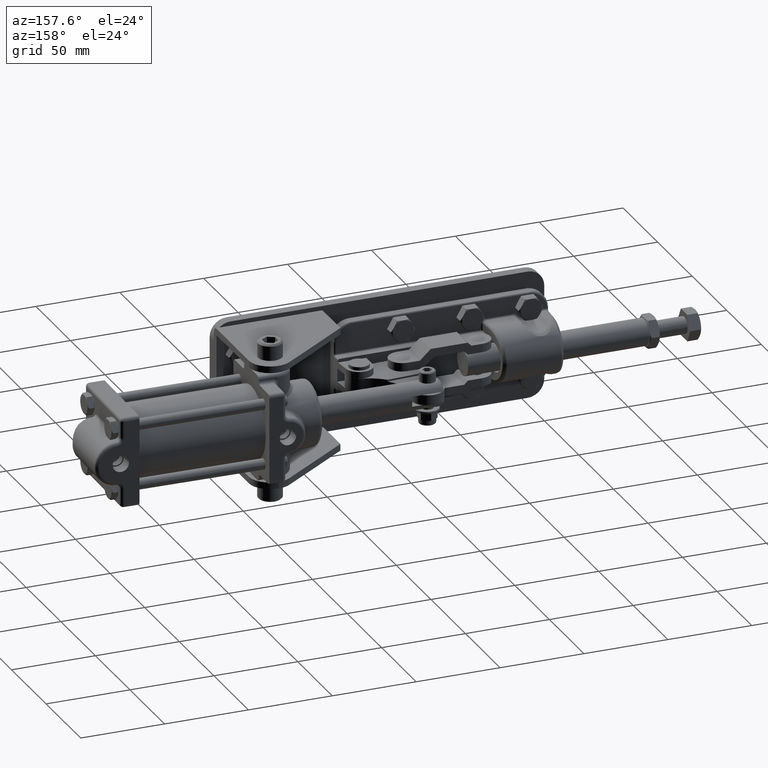
[diagram: clean part render]
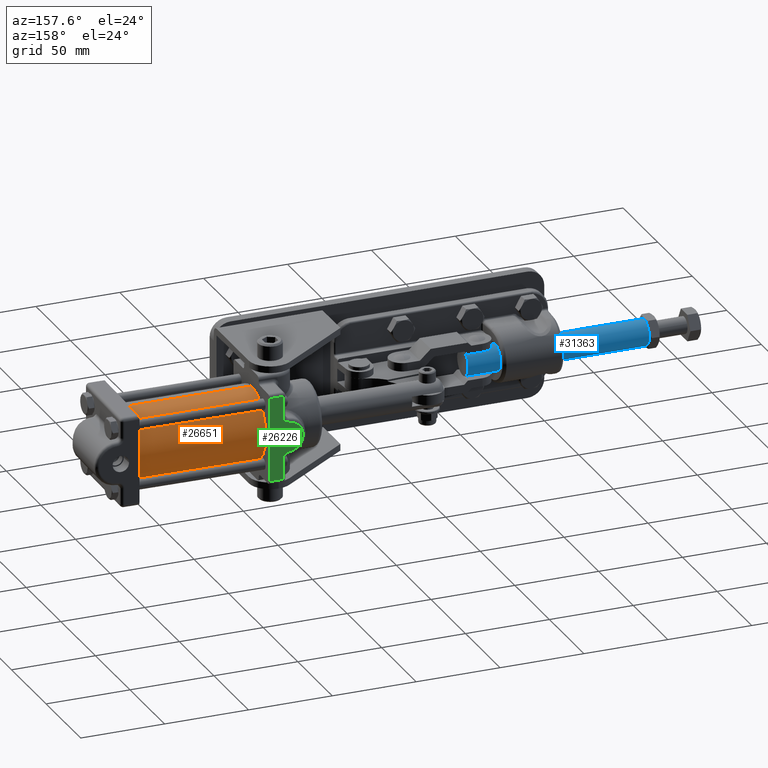
[diagram: same view with three faces highlighted in distinct colors, each labeled with its STEP entity id]
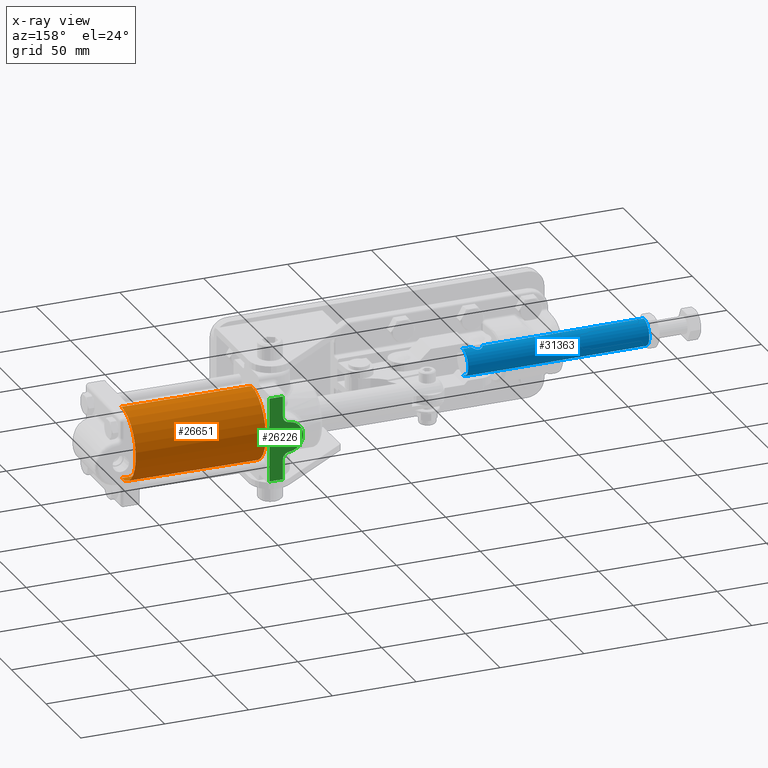
[diagram: x-ray of the same camera — body ghosted, the three highlighted faces saturated]
A machine part, auxiliary view with three faces highlighted in distinct colors.
The next image is the same camera in x-ray (body ghosted, the three faces saturated) — at least one of them is partly hidden behind the body in this view.
Their STEP definitions:

[orange] entity #26651 — the highlighted cylindrical surface (partial cylindrical patch) has radius 21.5 mm, axis along (-0.9999, 0.0153, -0).
#1189 = EDGE_CURVE ( 'NONE', #4429, #27098, #10210, .T. ) ;
#2428 = CARTESIAN_POINT ( 'NONE',  ( 272.4896351264483200, 49.64940371891281500, 21.50000000000002500 ) ) ;
#3803 = DIRECTION ( 'NONE',  ( 0.0000000000000000000, 0.0000000000000000000, 1.000000000000000000 ) ) ;
#4429 = VERTEX_POINT ( 'NONE', #26431 ) ;
#4477 = LINE ( 'NONE', #17892, #9894 ) ;
#4508 = AXIS2_PLACEMENT_3D ( 'NONE', #31165, #15212, #33855 ) ;
#5536 = CARTESIAN_POINT ( 'NONE',  ( 195.4987043908060100, 50.83117546486408900, 2.184105992002329000E-014 ) ) ;
#8000 = AXIS2_PLACEMENT_3D ( 'NONE', #16997, #27613, #3803 ) ;
#8088 = EDGE_CURVE ( 'NONE', #29514, #22769, #18469, .T. ) ;
#8206 = DIRECTION ( 'NONE',  ( 0.0000000000000000000, 0.0000000000000000000, -1.000000000000000000 ) ) ;
#8626 = EDGE_CURVE ( 'NONE', #22769, #27098, #25130, .T. ) ;
#9894 = VECTOR ( 'NONE', #28484, 1000.000000000000200 ) ;
#10210 = CIRCLE ( 'NONE', #17615, 21.50000000000000000 ) ;
#10393 = ORIENTED_EDGE ( 'NONE', *, *, #20884, .T. ) ;
#10613 = DIRECTION ( 'NONE',  ( -0.9998822173460039100, 0.01534768501235427900, -9.312529166378304100E-017 ) ) ;
#11880 = FACE_OUTER_BOUND ( 'NONE', #29717, .T. ) ;
#15043 = CARTESIAN_POINT ( 'NONE',  ( 272.4896351264483200, 49.64940371891281500, -21.49999999999997200 ) ) ;
#15095 = ORIENTED_EDGE ( 'NONE', *, *, #8626, .F. ) ;
#15212 = DIRECTION ( 'NONE',  ( 0.9998822173460041300, -0.01534768501235428400, 9.312529166378305400E-017 ) ) ;
#16997 = CARTESIAN_POINT ( 'NONE',  ( 272.4896351264483200, 49.64940371891281500, 2.901170737813458300E-014 ) ) ;
#17615 = AXIS2_PLACEMENT_3D ( 'NONE', #5536, #24189, #8206 ) ;
#17892 = CARTESIAN_POINT ( 'NONE',  ( 272.4896351264483200, 49.64940371891281500, -21.49999999999997200 ) ) ;
#18469 = CIRCLE ( 'NONE', #4508, 21.50000000000000000 ) ;
#19740 = CARTESIAN_POINT ( 'NONE',  ( 195.4987043908060100, 50.83117546486408900, 21.50000000000001800 ) ) ;
#20884 = EDGE_CURVE ( 'NONE', #29514, #4429, #4477, .T. ) ;
#21525 = CYLINDRICAL_SURFACE ( 'NONE', #8000, 21.50000000000000000 ) ;
#21890 = ORIENTED_EDGE ( 'NONE', *, *, #8088, .F. ) ;
#22769 = VERTEX_POINT ( 'NONE', #2428 ) ;
#24189 = DIRECTION ( 'NONE',  ( 0.9998822173460041300, -0.01534768501235428400, 9.312529166378305400E-017 ) ) ;
#25130 = LINE ( 'NONE', #29254, #32185 ) ;
#26431 = CARTESIAN_POINT ( 'NONE',  ( 195.4987043908060100, 50.83117546486408900, -21.49999999999997900 ) ) ;
#26651 = ADVANCED_FACE ( 'NONE', ( #11880 ), #21525, .T. ) ;
#27098 = VERTEX_POINT ( 'NONE', #19740 ) ;
#27613 = DIRECTION ( 'NONE',  ( -0.9998822173460041300, 0.01534768501235428400, -9.312529166378305400E-017 ) ) ;
#28484 = DIRECTION ( 'NONE',  ( -0.9998822173460039100, 0.01534768501235427900, -9.312529166378304100E-017 ) ) ;
#29116 = ORIENTED_EDGE ( 'NONE', *, *, #1189, .T. ) ;
#29254 = CARTESIAN_POINT ( 'NONE',  ( 272.4896351264483200, 49.64940371891281500, 21.50000000000002500 ) ) ;
#29514 = VERTEX_POINT ( 'NONE', #15043 ) ;
#29717 = EDGE_LOOP ( 'NONE', ( #21890, #10393, #29116, #15095 ) ) ;
#31165 = CARTESIAN_POINT ( 'NONE',  ( 272.4896351264483200, 49.64940371891281500, 2.901170737813458300E-014 ) ) ;
#32185 = VECTOR ( 'NONE', #10613, 1000.000000000000200 ) ;
#33855 = DIRECTION ( 'NONE',  ( 0.0000000000000000000, 0.0000000000000000000, -1.000000000000000000 ) ) ;

[blue] entity #31363 — the highlighted cylindrical surface (edge-blend (fillet) strip) has radius 7.95 mm, axis along (1, 0, 0).
#238 = AXIS2_PLACEMENT_3D ( 'NONE', #19629, #3641, #22315 ) ;
#299 = FACE_OUTER_BOUND ( 'NONE', #1018, .T. ) ;
#442 = CARTESIAN_POINT ( 'NONE',  ( -50.84390090930143900, 20.60000000000000100, -7.950000000000005500 ) ) ;
#481 = CARTESIAN_POINT ( 'NONE',  ( 46.82553455679837400, 22.98467841721720000, 7.584770263085003400 ) ) ;
#598 = CARTESIAN_POINT ( 'NONE',  ( 50.49093063701918300, 22.98150724325566300, 7.585781706907951600 ) ) ;
#1018 = EDGE_LOOP ( 'NONE', ( #3268, #5331, #7666, #14007, #22835, #3120, #5433, #6916 ) ) ;
#2032 = CARTESIAN_POINT ( 'NONE',  ( 51.50060239003677500, 21.57334141625861100, -7.892318447418389800 ) ) ;
#2152 = CARTESIAN_POINT ( 'NONE',  ( 48.45702548423008000, 23.59991052985414900, -7.362271172820299200 ) ) ;
#2263 = CARTESIAN_POINT ( 'NONE',  ( 45.75291409066623100, 21.38100077770594600, -7.913893248792826200 ) ) ;
#3120 = ORIENTED_EDGE ( 'NONE', *, *, #8259, .F. ) ;
#3185 = CARTESIAN_POINT ( 'NONE',  ( 47.32234587009121200, 23.29439518361024500, 7.479921503772142300 ) ) ;
#3268 = ORIENTED_EDGE ( 'NONE', *, *, #19472, .F. ) ;
#3303 = CARTESIAN_POINT ( 'NONE',  ( 50.91564992009460200, 22.58299983075173900, 7.700039230911754000 ) ) ;
#3624 = CARTESIAN_POINT ( 'NONE',  ( 51.65609909069856100, 20.60000000000000100, -7.950000000000000200 ) ) ;
#3641 = DIRECTION ( 'NONE',  ( -1.000000000000000000, -1.246135698863266400E-019, -2.584817083796331200E-017 ) ) ;
#4175 = CARTESIAN_POINT ( 'NONE',  ( -50.84390090930143900, 20.60000000000000100, -2.666331141453286800E-015 ) ) ;
#4326 = VERTEX_POINT ( 'NONE', #28628 ) ;
#4685 = VECTOR ( 'NONE', #15559, 1000.000000000000000 ) ;
#4748 = CARTESIAN_POINT ( 'NONE',  ( 51.25506298819489400, 22.11104594502966600, -7.806827108133614200 ) ) ;
#4882 = CARTESIAN_POINT ( 'NONE',  ( 47.87117673211046300, 23.50230406885167900, -7.401412073730916100 ) ) ;
#4996 = CARTESIAN_POINT ( 'NONE',  ( 45.65609909069856800, 20.80017735060852500, -7.950000000000002000 ) ) ;
#5331 = ORIENTED_EDGE ( 'NONE', *, *, #24228, .T. ) ;
#5433 = ORIENTED_EDGE ( 'NONE', *, *, #6570, .T. ) ;
#5530 = LINE ( 'NONE', #442, #4685 ) ;
#5700 = VERTEX_POINT ( 'NONE', #3624 ) ;
#5790 = CARTESIAN_POINT ( 'NONE',  ( 45.65609909069856100, 20.60000000000000100, 7.949999999999998400 ) ) ;
#5901 = CARTESIAN_POINT ( 'NONE',  ( 47.87265919358332400, 23.50258338543265800, 7.401300513450507900 ) ) ;
#6017 = CARTESIAN_POINT ( 'NONE',  ( 51.25737261235641300, 22.10703702126681600, 7.807601283260509300 ) ) ;
#6037 = DIRECTION ( 'NONE',  ( 1.000000000000000000, 1.246135698863266400E-019, 2.584817083796331200E-017 ) ) ;
#6343 = AXIS2_PLACEMENT_3D ( 'NONE', #4175, #22975, #30880 ) ;
#6570 = EDGE_CURVE ( 'NONE', #5700, #23494, #8005, .T. ) ;
#6622 = CARTESIAN_POINT ( 'NONE',  ( -50.84390090930143900, 20.60000000000000100, -7.950000000000005500 ) ) ;
#6728 = CARTESIAN_POINT ( 'NONE',  ( -50.84390090930143900, 20.60000000000000100, 7.949999999999996600 ) ) ;
#6916 = ORIENTED_EDGE ( 'NONE', *, *, #28222, .F. ) ;
#7441 = CARTESIAN_POINT ( 'NONE',  ( 50.91468415335956600, 22.58426191108901200, -7.699733936126137700 ) ) ;
#7558 = CARTESIAN_POINT ( 'NONE',  ( 47.32017122739742400, 23.29324723126108100, -7.480332959099663400 ) ) ;
#7666 = ORIENTED_EDGE ( 'NONE', *, *, #28415, .T. ) ;
#8005 = B_SPLINE_CURVE_WITH_KNOTS ( 'NONE', 3,
 ( #28653, #10004, #34022, #18045, #2032, #20746, #4748, #23433, #7441, #26115, #10126, #28769, #12810, #31432, #15499, #34142, #18167, #2152, #20865, #4882, #23542, #7558, #26229, #10249, #28878, #12925, #31557, #15609, #34256, #18279, #2263, #20985, #4996, #23666 ),
 .UNSPECIFIED., .F., .F.,
 ( 4, 2, 2, 2, 2, 2, 2, 2, 2, 2, 2, 2, 2, 2, 2, 2, 4 ),
 ( 0.009467911930920266900, 0.01005953640104980200, 0.01065116087117933900, 0.01124278534130887500, 0.01183440981143841000, 0.01242603428156794500, 0.01301765875169748200, 0.01360928322182701800, 0.01420090769195655300, 0.01479253216208608800, 0.01538415663221562500, 0.01597578110234516200, 0.01656740557247469600, 0.01715903004260423100, 0.01775065451273377000, 0.01834227898286330500, 0.01893390345299284000 ),
 .UNSPECIFIED. ) ;
#8259 = EDGE_CURVE ( 'NONE', #5700, #4326, #5530, .T. ) ;
#8463 = CARTESIAN_POINT ( 'NONE',  ( 45.75399770714106000, 21.38559418277184300, 7.913493221241958000 ) ) ;
#8574 = CARTESIAN_POINT ( 'NONE',  ( 48.45973127307630100, 23.60008886003805300, 7.362198505959081100 ) ) ;
#8701 = CARTESIAN_POINT ( 'NONE',  ( 51.50147931756964700, 21.57097383443208100, 7.892632177562754600 ) ) ;
#10004 = CARTESIAN_POINT ( 'NONE',  ( 51.65609909069854700, 20.79715833779632200, -7.950000000000000200 ) ) ;
#10126 = CARTESIAN_POINT ( 'NONE',  ( 50.48666362459874100, 22.98467841721719700, -7.584770263085006000 ) ) ;
#10249 = CARTESIAN_POINT ( 'NONE',  ( 46.82126754437792500, 22.98150724325566300, -7.585781706907949000 ) ) ;
#10310 = CARTESIAN_POINT ( 'NONE',  ( 57.15609909069856100, 20.60000000000000100, 7.950000000000000200 ) ) ;
#11173 = CARTESIAN_POINT ( 'NONE',  ( 45.96281730677070200, 21.93597371415483400, 7.839085292503983600 ) ) ;
#11285 = CARTESIAN_POINT ( 'NONE',  ( 49.05143365538319200, 23.58046684246782100, 7.370284051119920600 ) ) ;
#11389 = CARTESIAN_POINT ( 'NONE',  ( 51.63624199689398600, 20.99647650351961700, 7.942447667452569200 ) ) ;
#11857 = CARTESIAN_POINT ( 'NONE',  ( 51.65609909069856100, 20.60000000000000100, 7.950000000000002000 ) ) ;
#12810 = CARTESIAN_POINT ( 'NONE',  ( 49.98985231130590300, 23.29439518361024100, -7.479921503772145800 ) ) ;
#12925 = CARTESIAN_POINT ( 'NONE',  ( 46.39654826130252000, 22.58299983075174900, -7.700039230911754000 ) ) ;
#13835 = CARTESIAN_POINT ( 'NONE',  ( 46.27413903283492400, 22.43415906377342500, 7.737290861345347700 ) ) ;
#13863 = LINE ( 'NONE', #6622, #18449 ) ;
#13899 = VERTEX_POINT ( 'NONE', #24747 ) ;
#13946 = CARTESIAN_POINT ( 'NONE',  ( 49.63088563896904000, 23.44395412936825500, 7.424344195801906700 ) ) ;
#14007 = ORIENTED_EDGE ( 'NONE', *, *, #28937, .T. ) ;
#14073 = CARTESIAN_POINT ( 'NONE',  ( 51.65609909069856100, 20.60000000000000100, 7.950000000000002000 ) ) ;
#14546 = VERTEX_POINT ( 'NONE', #6728 ) ;
#15172 = DIRECTION ( 'NONE',  ( -1.000000000000000000, -1.246135698863266400E-019, -2.584817083796331200E-017 ) ) ;
#15499 = CARTESIAN_POINT ( 'NONE',  ( 49.43953898781380500, 23.50258338543265800, -7.401300513450509700 ) ) ;
#15559 = DIRECTION ( 'NONE',  ( 1.000000000000000000, 1.246135698863266400E-019, 2.584817083796331200E-017 ) ) ;
#15609 = CARTESIAN_POINT ( 'NONE',  ( 46.05482556904070200, 22.10703702126680900, -7.807601283260508400 ) ) ;
#16474 = DIRECTION ( 'NONE',  ( 1.000000000000000000, 1.246135698863266400E-019, 2.584817083796331200E-017 ) ) ;
#16516 = CARTESIAN_POINT ( 'NONE',  ( 46.67521670963429200, 22.86154964779977000, 7.622899134152820700 ) ) ;
#16635 = CARTESIAN_POINT ( 'NONE',  ( 50.16649737591764300, 23.19940004098250000, 7.513905794024749300 ) ) ;
#16765 = CARTESIAN_POINT ( 'NONE',  ( -50.84390090930143900, 20.60000000000000100, 7.949999999999998400 ) ) ;
#16806 = VERTEX_POINT ( 'NONE', #29168 ) ;
#18045 = CARTESIAN_POINT ( 'NONE',  ( 51.55820047425604700, 21.38559418277184300, -7.913493221241956200 ) ) ;
#18167 = CARTESIAN_POINT ( 'NONE',  ( 48.85246690832082800, 23.60008886003805300, -7.362198505959080200 ) ) ;
#18279 = CARTESIAN_POINT ( 'NONE',  ( 45.81071886382748200, 21.57097383443208500, -7.892632177562758100 ) ) ;
#18449 = VECTOR ( 'NONE', #19904, 1000.000000000000000 ) ;
#18940 = VERTEX_POINT ( 'NONE', #11857 ) ;
#19193 = CARTESIAN_POINT ( 'NONE',  ( 47.14801126749846100, 23.20064007194964600, 7.513461406934212100 ) ) ;
#19267 = CARTESIAN_POINT ( 'NONE',  ( -50.84390090930143900, 20.60000000000000100, 7.949999999999998400 ) ) ;
#19304 = CARTESIAN_POINT ( 'NONE',  ( 50.64057331564919200, 22.85825603727577300, 7.623855465343574200 ) ) ;
#19472 = EDGE_CURVE ( 'NONE', #14546, #13899, #32949, .T. ) ;
#19629 = CARTESIAN_POINT ( 'NONE',  ( -50.84390090930143900, 20.60000000000000100, -2.666331141453286800E-015 ) ) ;
#19676 = CARTESIAN_POINT ( 'NONE',  ( 45.65609909069856100, 20.60000000000000100, -7.950000000000002000 ) ) ;
#19904 = DIRECTION ( 'NONE',  ( 1.000000000000000000, 1.246135698863266400E-019, 2.584817083796331200E-017 ) ) ;
#20746 = CARTESIAN_POINT ( 'NONE',  ( 51.34938087462642600, 21.93597371415483400, -7.839085292503987100 ) ) ;
#20865 = CARTESIAN_POINT ( 'NONE',  ( 48.26076452601392900, 23.58046684246782100, -7.370284051119921500 ) ) ;
#20985 = CARTESIAN_POINT ( 'NONE',  ( 45.67595618450314300, 20.99647650351962000, -7.942447667452571000 ) ) ;
#21691 = VECTOR ( 'NONE', #6037, 1000.000000000000000 ) ;
#21758 = CARTESIAN_POINT ( 'NONE',  ( 45.65609909069855400, 20.79715833779632200, 7.950000000000000200 ) ) ;
#21871 = CARTESIAN_POINT ( 'NONE',  ( 47.68544329262397200, 23.44543325007049700, 7.423779409939943900 ) ) ;
#21999 = CARTESIAN_POINT ( 'NONE',  ( 51.04114433442246200, 22.43012122640468700, 7.738246227570099800 ) ) ;
#22315 = DIRECTION ( 'NONE',  ( 0.0000000000000000000, 0.0000000000000000000, 1.000000000000000000 ) ) ;
#22835 = ORIENTED_EDGE ( 'NONE', *, *, #32815, .T. ) ;
#22902 = AXIS2_PLACEMENT_3D ( 'NONE', #31116, #15172, #33808 ) ;
#22975 = DIRECTION ( 'NONE',  ( 1.000000000000000000, 1.246135698863266400E-019, 2.584817083796331200E-017 ) ) ;
#23384 = VECTOR ( 'NONE', #16474, 1000.000000000000000 ) ;
#23433 = CARTESIAN_POINT ( 'NONE',  ( 51.03805914856218400, 22.43415906377343600, -7.737290861345349500 ) ) ;
#23494 = VERTEX_POINT ( 'NONE', #19676 ) ;
#23542 = CARTESIAN_POINT ( 'NONE',  ( 47.68131254242808800, 23.44395412936825500, -7.424344195801905000 ) ) ;
#23666 = CARTESIAN_POINT ( 'NONE',  ( 45.65609909069856100, 20.60000000000000100, -7.950000000000002000 ) ) ;
#24228 = EDGE_CURVE ( 'NONE', #14546, #16806, #30449, .T. ) ;
#24455 = CARTESIAN_POINT ( 'NONE',  ( 45.67582497497546300, 20.99663188929050900, 7.942494339125791400 ) ) ;
#24581 = CARTESIAN_POINT ( 'NONE',  ( 48.25875195985176400, 23.58008114644374900, 7.370437976158744900 ) ) ;
#24693 = CARTESIAN_POINT ( 'NONE',  ( 51.34969020883305300, 21.93549455668213400, 7.839189190632098700 ) ) ;
#24747 = CARTESIAN_POINT ( 'NONE',  ( -50.84390090930143900, 20.60000000000000100, -7.950000000000003700 ) ) ;
#25071 = LINE ( 'NONE', #19267, #23384 ) ;
#26115 = CARTESIAN_POINT ( 'NONE',  ( 50.63698147176282300, 22.86154964779977700, -7.622899134152822500 ) ) ;
#26122 = B_SPLINE_CURVE_WITH_KNOTS ( 'NONE', 3,
 ( #5790, #21758, #24455, #8463, #27135, #11173, #29779, #13835, #32490, #16516, #481, #19193, #3185, #21871, #5901, #24581, #8574, #27256, #11285, #29905, #13946, #32608, #16635, #598, #19304, #3303, #21999, #6017, #24693, #8701, #27367, #11389, #30025, #14073 ),
 .UNSPECIFIED., .F., .F.,
 ( 4, 2, 2, 2, 2, 2, 2, 2, 2, 2, 2, 2, 2, 2, 2, 2, 4 ),
 ( 0.009467911930920273900, 0.01005953640104981100, 0.01065116087117934700, 0.01124278534130888600, 0.01183440981143842200, 0.01242603428156795900, 0.01301765875169749700, 0.01360928322182703400, 0.01420090769195657100, 0.01479253216208610700, 0.01538415663221564400, 0.01597578110234518200, 0.01656740557247472100, 0.01715903004260425600, 0.01775065451273379400, 0.01834227898286332900, 0.01893390345299286700 ),
 .UNSPECIFIED. ) ;
#26229 = CARTESIAN_POINT ( 'NONE',  ( 47.14570080547948500, 23.19940004098250000, -7.513905794024748500 ) ) ;
#27068 = CYLINDRICAL_SURFACE ( 'NONE', #6343, 7.950000000000002000 ) ;
#27135 = CARTESIAN_POINT ( 'NONE',  ( 45.81159579136034700, 21.57334141625861100, 7.892318447418389800 ) ) ;
#27256 = CARTESIAN_POINT ( 'NONE',  ( 48.85517269716704900, 23.59991052985414900, 7.362271172820296500 ) ) ;
#27367 = CARTESIAN_POINT ( 'NONE',  ( 51.55928409073089100, 21.38100077770593900, 7.913893248792823500 ) ) ;
#28150 = CIRCLE ( 'NONE', #22902, 7.950000000000002000 ) ;
#28222 = EDGE_CURVE ( 'NONE', #13899, #23494, #13863, .T. ) ;
#28415 = EDGE_CURVE ( 'NONE', #16806, #18940, #26122, .T. ) ;
#28628 = CARTESIAN_POINT ( 'NONE',  ( 57.15609909069856100, 20.60000000000000100, -7.950000000000000200 ) ) ;
#28653 = CARTESIAN_POINT ( 'NONE',  ( 51.65609909069856100, 20.60000000000000100, -7.950000000000000200 ) ) ;
#28769 = CARTESIAN_POINT ( 'NONE',  ( 50.16418691389867500, 23.20064007194963600, -7.513461406934214700 ) ) ;
#28878 = CARTESIAN_POINT ( 'NONE',  ( 46.67162486574794400, 22.85825603727576900, -7.623855465343570600 ) ) ;
#28937 = EDGE_CURVE ( 'NONE', #18940, #32393, #25071, .T. ) ;
#29168 = CARTESIAN_POINT ( 'NONE',  ( 45.65609909069856100, 20.60000000000000100, 7.949999999999998400 ) ) ;
#29779 = CARTESIAN_POINT ( 'NONE',  ( 46.05713519320222800, 22.11104594502966200, 7.806827108133614200 ) ) ;
#29905 = CARTESIAN_POINT ( 'NONE',  ( 49.44102144928664400, 23.50230406885167900, 7.401412073730916100 ) ) ;
#30025 = CARTESIAN_POINT ( 'NONE',  ( 51.65609909069856800, 20.80017735060852500, 7.950000000000002000 ) ) ;
#30449 = LINE ( 'NONE', #16765, #21691 ) ;
#30880 = DIRECTION ( 'NONE',  ( 0.0000000000000000000, 0.0000000000000000000, -1.000000000000000000 ) ) ;
#31116 = CARTESIAN_POINT ( 'NONE',  ( 57.15609909069856100, 20.60000000000000100, 1.252713090467508100E-016 ) ) ;
#31363 = ADVANCED_FACE ( 'NONE', ( #299 ), #27068, .T. ) ;
#31432 = CARTESIAN_POINT ( 'NONE',  ( 49.62675488877315600, 23.44543325007049000, -7.423779409939944800 ) ) ;
#31557 = CARTESIAN_POINT ( 'NONE',  ( 46.27105384697466000, 22.43012122640469400, -7.738246227570097200 ) ) ;
#32393 = VERTEX_POINT ( 'NONE', #10310 ) ;
#32490 = CARTESIAN_POINT ( 'NONE',  ( 46.39751402803755600, 22.58426191108900800, 7.699733936126138500 ) ) ;
#32608 = CARTESIAN_POINT ( 'NONE',  ( 49.99202695399968400, 23.29324723126108100, 7.480332959099663400 ) ) ;
#32815 = EDGE_CURVE ( 'NONE', #32393, #4326, #28150, .T. ) ;
#32949 = CIRCLE ( 'NONE', #238, 7.950000000000002000 ) ;
#33808 = DIRECTION ( 'NONE',  ( 0.0000000000000000000, 0.0000000000000000000, 1.000000000000000000 ) ) ;
#34022 = CARTESIAN_POINT ( 'NONE',  ( 51.63637320642166600, 20.99663188929050900, -7.942494339125789600 ) ) ;
#34142 = CARTESIAN_POINT ( 'NONE',  ( 49.05344622154536400, 23.58008114644374900, -7.370437976158744900 ) ) ;
#34256 = CARTESIAN_POINT ( 'NONE',  ( 45.96250797256407600, 21.93549455668213400, -7.839189190632102300 ) ) ;

[green] entity #26226 — the highlighted planar face has unit normal (-0.0153, -0.9999, 0).
#32 = LINE ( 'NONE', #18999, #14282 ) ;
#585 = FACE_OUTER_BOUND ( 'NONE', #30078, .T. ) ;
#979 = ORIENTED_EDGE ( 'NONE', *, *, #29564, .T. ) ;
#1151 = LINE ( 'NONE', #31216, #21631 ) ;
#1442 = ORIENTED_EDGE ( 'NONE', *, *, #19494, .T. ) ;
#1634 = DIRECTION ( 'NONE',  ( 3.855682799668603800E-017, 3.237180082914444400E-017, 1.000000000000000000 ) ) ;
#1737 = EDGE_CURVE ( 'NONE', #28586, #2878, #32, .T. ) ;
#1815 = VERTEX_POINT ( 'NONE', #27187 ) ;
#2036 = AXIS2_PLACEMENT_3D ( 'NONE', #11710, #30342, #14377 ) ;
#2412 = CARTESIAN_POINT ( 'NONE',  ( 184.2221613448632000, 78.00744518873527500, 8.973333274718596500 ) ) ;
#2437 = DIRECTION ( 'NONE',  ( 0.9998822173460039100, -0.01534768501235419700, 1.225670896031800300E-016 ) ) ;
#2503 = ORIENTED_EDGE ( 'NONE', *, *, #4774, .T. ) ;
#2581 = VERTEX_POINT ( 'NONE', #30911 ) ;
#2878 = VERTEX_POINT ( 'NONE', #5596 ) ;
#2970 = CIRCLE ( 'NONE', #4442, 4.000000000000000000 ) ;
#2993 = DIRECTION ( 'NONE',  ( 3.855682799668603800E-017, 3.237180082914444400E-017, 1.000000000000000000 ) ) ;
#4100 = CARTESIAN_POINT ( 'NONE',  ( 183.9145052779875000, 78.01216755335447300, 12.96148139681574000 ) ) ;
#4217 = CARTESIAN_POINT ( 'NONE',  ( 189.7778146005044800, 77.92216872844204500, 1.190239780979230800E-014 ) ) ;
#4442 = AXIS2_PLACEMENT_3D ( 'NONE', #24826, #8831, #27496 ) ;
#4774 = EDGE_CURVE ( 'NONE', #20181, #28586, #27458, .T. ) ;
#5178 = ORIENTED_EDGE ( 'NONE', *, *, #22548, .T. ) ;
#5254 = CARTESIAN_POINT ( 'NONE',  ( 195.9130918861395400, 77.82799533320620400, 27.00000000000001800 ) ) ;
#5506 = VERTEX_POINT ( 'NONE', #13121 ) ;
#5596 = CARTESIAN_POINT ( 'NONE',  ( 187.9140341473715200, 77.95077681330505500, 25.00000000000001100 ) ) ;
#5964 = LINE ( 'NONE', #27896, #19303 ) ;
#6257 = CIRCLE ( 'NONE', #2036, 9.000000000000000000 ) ;
#6801 = DIRECTION ( 'NONE',  ( 0.0000000000000000000, 0.0000000000000000000, -1.000000000000000000 ) ) ;
#6804 = DIRECTION ( 'NONE',  ( 0.01534768501235420100, 0.9998822173460041300, -0.0000000000000000000 ) ) ;
#7317 = DIRECTION ( 'NONE',  ( -0.9998822173460039100, 0.01534768501235419700, -8.164564799939029900E-016 ) ) ;
#7833 = PLANE ( 'NONE',  #14707 ) ;
#8831 = DIRECTION ( 'NONE',  ( -0.01534768501235420100, -0.9998822173460041300, 3.295974604359928900E-017 ) ) ;
#9067 = ORIENTED_EDGE ( 'NONE', *, *, #1737, .T. ) ;
#9855 = CARTESIAN_POINT ( 'NONE',  ( 184.9143874953335300, 77.99681986834212900, 1.130672960668703700E-014 ) ) ;
#10636 = DIRECTION ( 'NONE',  ( 1.220467975257081500E-016, -3.483698504144335300E-017, -1.000000000000000000 ) ) ;
#11112 = LINE ( 'NONE', #34542, #32372 ) ;
#11710 = CARTESIAN_POINT ( 'NONE',  ( 184.9143874953335000, 77.99681986834210100, 1.960290879121112100E-014 ) ) ;
#12078 = CARTESIAN_POINT ( 'NONE',  ( 187.9140341473715200, 77.95077681330505500, 12.96148139681574000 ) ) ;
#12361 = CIRCLE ( 'NONE', #34013, 4.863999999999995400 ) ;
#12553 = DIRECTION ( 'NONE',  ( -0.9998822173460040200, 0.01534768501235333200, 0.0000000000000000000 ) ) ;
#12855 = LINE ( 'NONE', #33614, #19940 ) ;
#13121 = CARTESIAN_POINT ( 'NONE',  ( 187.9140341473715200, 77.95077681330505500, -24.99999999999998600 ) ) ;
#13541 = VERTEX_POINT ( 'NONE', #4217 ) ;
#13560 = EDGE_CURVE ( 'NONE', #5506, #20981, #12855, .T. ) ;
#14141 = ORIENTED_EDGE ( 'NONE', *, *, #30650, .F. ) ;
#14282 = VECTOR ( 'NONE', #2993, 1000.000000000000000 ) ;
#14377 = DIRECTION ( 'NONE',  ( 0.0000000000000000000, 0.0000000000000000000, -1.000000000000000000 ) ) ;
#14406 = ORIENTED_EDGE ( 'NONE', *, *, #24442, .F. ) ;
#14707 = AXIS2_PLACEMENT_3D ( 'NONE', #5254, #26621, #10636 ) ;
#16805 = EDGE_CURVE ( 'NONE', #2878, #1815, #11112, .T. ) ;
#17872 = ORIENTED_EDGE ( 'NONE', *, *, #28102, .T. ) ;
#18736 = CIRCLE ( 'NONE', #26061, 4.863999999999995400 ) ;
#18999 = CARTESIAN_POINT ( 'NONE',  ( 187.9140341473715200, 77.95077681330505500, 27.00000000000001400 ) ) ;
#19224 = VERTEX_POINT ( 'NONE', #21181 ) ;
#19303 = VECTOR ( 'NONE', #30584, 1000.000000000000000 ) ;
#19494 = EDGE_CURVE ( 'NONE', #19224, #20181, #6257, .T. ) ;
#19940 = VECTOR ( 'NONE', #1634, 1000.000000000000000 ) ;
#20181 = VERTEX_POINT ( 'NONE', #2412 ) ;
#20705 = AXIS2_PLACEMENT_3D ( 'NONE', #4100, #22764, #6801 ) ;
#20981 = VERTEX_POINT ( 'NONE', #23730 ) ;
#21181 = CARTESIAN_POINT ( 'NONE',  ( 184.2221613448632000, 78.00744518873527500, -8.973333274718553900 ) ) ;
#21631 = VECTOR ( 'NONE', #7317, 1000.000000000000200 ) ;
#21927 = EDGE_LOOP ( 'NONE', ( #14141, #14406 ) ) ;
#22548 = EDGE_CURVE ( 'NONE', #1815, #24316, #5964, .T. ) ;
#22590 = CARTESIAN_POINT ( 'NONE',  ( 195.9130918861395700, 77.82799533320620400, -24.99999999999997500 ) ) ;
#22764 = DIRECTION ( 'NONE',  ( -0.01534768501235420100, -0.9998822173460041300, 3.295974604359928900E-017 ) ) ;
#22773 = CARTESIAN_POINT ( 'NONE',  ( 184.9143874953335300, 77.99681986834212900, 1.130672960668703700E-014 ) ) ;
#23730 = CARTESIAN_POINT ( 'NONE',  ( 187.9140341473715200, 77.95077681330505500, -12.96148139681569600 ) ) ;
#24316 = VERTEX_POINT ( 'NONE', #22590 ) ;
#24442 = EDGE_CURVE ( 'NONE', #13541, #2581, #18736, .T. ) ;
#24826 = CARTESIAN_POINT ( 'NONE',  ( 183.9145052779875000, 78.01216755335447300, -12.96148139681569900 ) ) ;
#25486 = DIRECTION ( 'NONE',  ( -0.9998822173460040200, 0.01534768501235333200, 0.0000000000000000000 ) ) ;
#26061 = AXIS2_PLACEMENT_3D ( 'NONE', #9855, #28504, #12553 ) ;
#26226 = ADVANCED_FACE ( 'NONE', ( #34433, #585 ), #7833, .F. ) ;
#26621 = DIRECTION ( 'NONE',  ( -0.01534768501235419900, -0.9998822173460040200, 3.295974604369681800E-017 ) ) ;
#27187 = CARTESIAN_POINT ( 'NONE',  ( 195.9130918861395400, 77.82799533320620400, 25.00000000000001400 ) ) ;
#27458 = CIRCLE ( 'NONE', #20705, 4.000000000000000000 ) ;
#27496 = DIRECTION ( 'NONE',  ( 0.0000000000000000000, 0.0000000000000000000, -1.000000000000000000 ) ) ;
#27896 = CARTESIAN_POINT ( 'NONE',  ( 195.9130918861395700, 77.82799533320620400, -26.99999999999997500 ) ) ;
#28102 = EDGE_CURVE ( 'NONE', #20981, #19224, #2970, .T. ) ;
#28504 = DIRECTION ( 'NONE',  ( 0.01534768501235420100, 0.9998822173460041300, -0.0000000000000000000 ) ) ;
#28586 = VERTEX_POINT ( 'NONE', #12078 ) ;
#29564 = EDGE_CURVE ( 'NONE', #24316, #5506, #1151, .T. ) ;
#30078 = EDGE_LOOP ( 'NONE', ( #1442, #2503, #9067, #31756, #5178, #979, #30252, #17872 ) ) ;
#30252 = ORIENTED_EDGE ( 'NONE', *, *, #13560, .T. ) ;
#30342 = DIRECTION ( 'NONE',  ( 0.01534768501235420100, 0.9998822173460041300, -3.295974604359928900E-017 ) ) ;
#30584 = DIRECTION ( 'NONE',  ( 1.220467975257081500E-016, -3.483698504144335300E-017, -1.000000000000000000 ) ) ;
#30650 = EDGE_CURVE ( 'NONE', #2581, #13541, #12361, .T. ) ;
#30911 = CARTESIAN_POINT ( 'NONE',  ( 180.0509603901625700, 78.07147100824221300, 1.130672960668703700E-014 ) ) ;
#31216 = CARTESIAN_POINT ( 'NONE',  ( 195.9130918861396000, 77.82799533320620400, -24.99999999999997500 ) ) ;
#31756 = ORIENTED_EDGE ( 'NONE', *, *, #16805, .T. ) ;
#32372 = VECTOR ( 'NONE', #2437, 1000.000000000000200 ) ;
#33614 = CARTESIAN_POINT ( 'NONE',  ( 187.9140341473715200, 77.95077681330505500, 27.00000000000001400 ) ) ;
#34013 = AXIS2_PLACEMENT_3D ( 'NONE', #22773, #6804, #25486 ) ;
#34433 = FACE_BOUND ( 'NONE', #21927, .T. ) ;
#34542 = CARTESIAN_POINT ( 'NONE',  ( 195.9130918861395400, 77.82799533320620400, 25.00000000000001400 ) ) ;